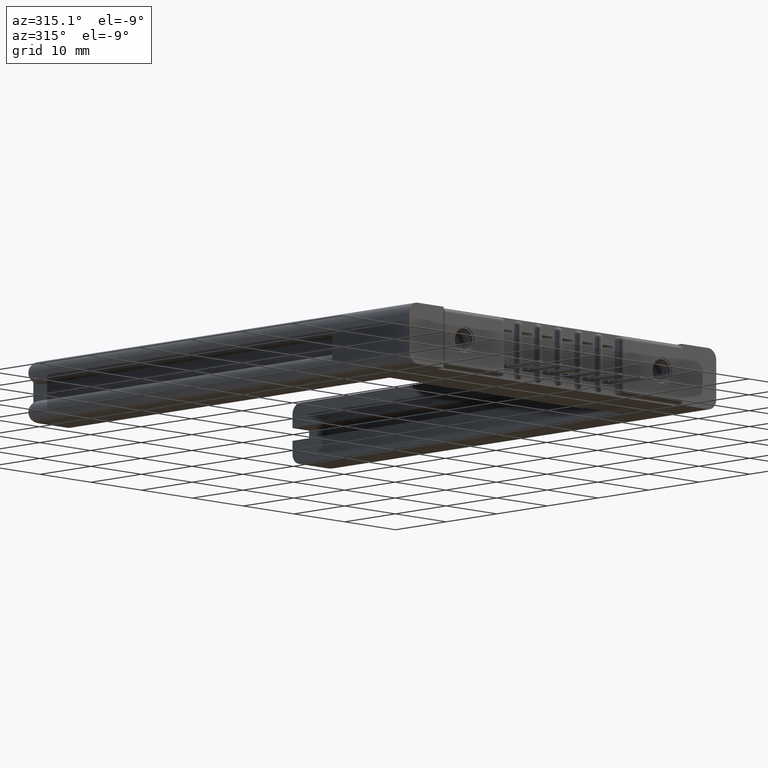
[diagram: clean part render]
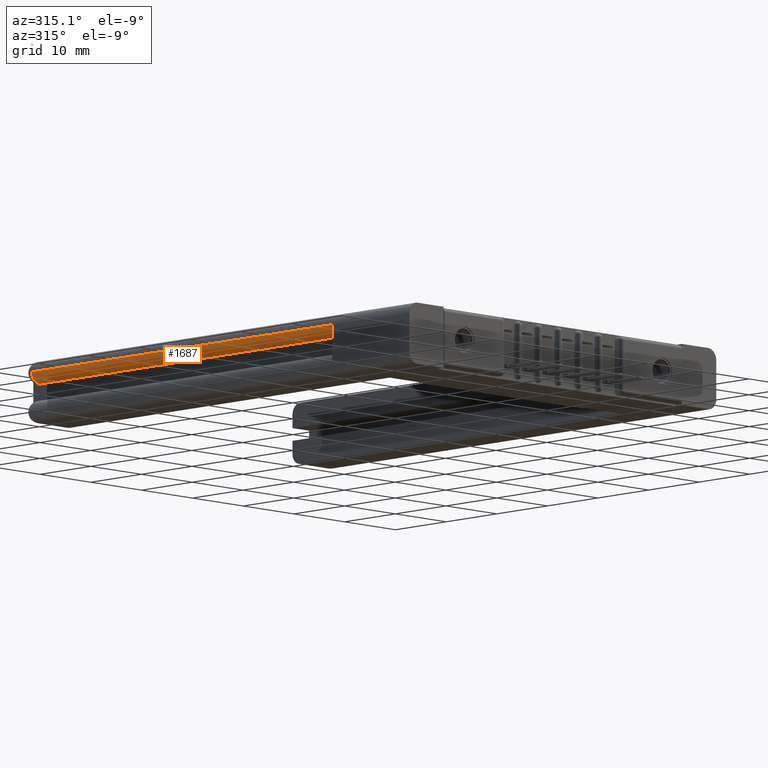
[diagram: same view with one face highlighted and labeled with its STEP entity id]
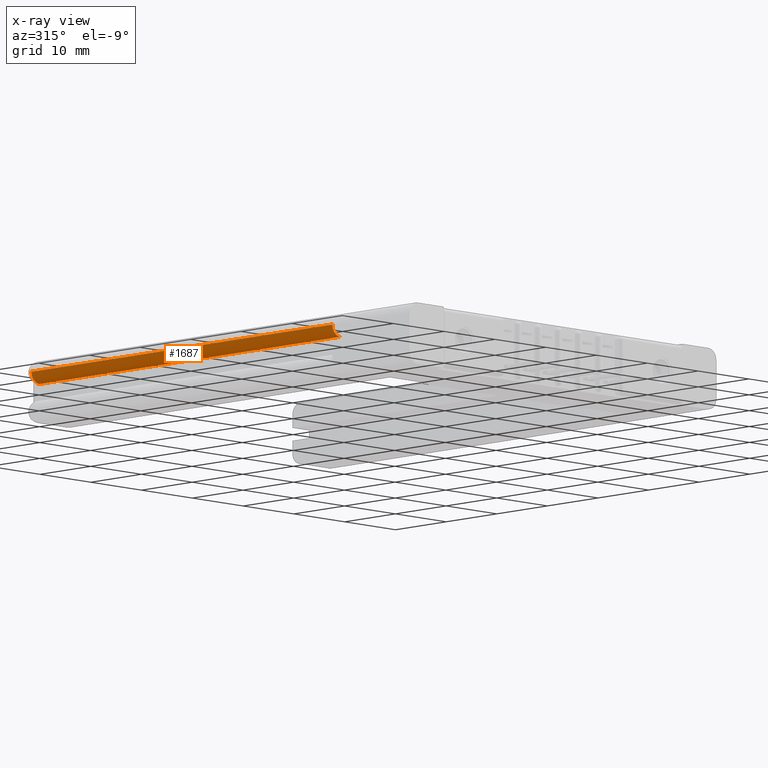
[diagram: x-ray of the same camera — body ghosted, the highlighted face saturated]
A machine part, auxiliary view. The second image highlights one B-rep face of the part: STEP entity #1687.
The next image is the same camera in x-ray: the body ghosted, the highlighted face saturated — about 0% of this face is hidden behind the body in this view.
In plain terms, the highlighted cylindrical surface (edge-blend (fillet) strip) has radius 1.5621 mm, axis along (-0, -1, 0).
Its self-contained STEP definition (entity closure, byte-faithful):
#196 = DIRECTION ( 'NONE',  ( -7.120336040201874200E-016, -1.000000000000000000, 2.334284690065040000E-016 ) ) ;
#373 = VERTEX_POINT ( 'NONE', #8553 ) ;
#503 = LINE ( 'NONE', #9226, #5487 ) ;
#795 = VECTOR ( 'NONE', #6135, 39.37007874015748100 ) ;
#901 = AXIS2_PLACEMENT_3D ( 'NONE', #2911, #196, #2866 ) ;
#1035 = CARTESIAN_POINT ( 'NONE',  ( 0.06149796744608740400, 0.6000000000000002000, -0.1225000000000015000 ) ) ;
#1482 = VERTEX_POINT ( 'NONE', #1958 ) ;
#1687 = ADVANCED_FACE ( 'NONE', ( #5105 ), #10279, .T. ) ;
#1958 = CARTESIAN_POINT ( 'NONE',  ( 2.032419574938677500E-006, 2.940000000000007100, -0.06149998347626495200 ) ) ;
#2248 = CARTESIAN_POINT ( 'NONE',  ( 0.06150000000000370400, 2.940000000000007100, -0.06100000000000110200 ) ) ;
#2866 = DIRECTION ( 'NONE',  ( 0.0000000000000000000, 0.0000000000000000000, -1.000000000000000000 ) ) ;
#2911 = CARTESIAN_POINT ( 'NONE',  ( 0.06149796744608740400, 0.6000000000000002000, -0.06100000000000069300 ) ) ;
#2971 = LINE ( 'NONE', #11797, #795 ) ;
#3234 = ORIENTED_EDGE ( 'NONE', *, *, #10806, .T. ) ;
#3235 = DIRECTION ( 'NONE',  ( 7.120336040201873200E-016, 1.000000000000000000, -2.263142815230032500E-016 ) ) ;
#3626 = AXIS2_PLACEMENT_3D ( 'NONE', #11562, #6894, #7720 ) ;
#4973 = EDGE_CURVE ( 'NONE', #11032, #7390, #5272, .T. ) ;
#5105 = FACE_OUTER_BOUND ( 'NONE', #11660, .T. ) ;
#5272 = CIRCLE ( 'NONE', #901, 0.06150000000000035300 ) ;
#5487 = VECTOR ( 'NONE', #3235, 39.37007874015748100 ) ;
#6135 = DIRECTION ( 'NONE',  ( -7.120336040201873200E-016, -1.000000000000000000, 2.334284690065040000E-016 ) ) ;
#6467 = ORIENTED_EDGE ( 'NONE', *, *, #8716, .F. ) ;
#6894 = DIRECTION ( 'NONE',  ( -7.120336040201873200E-016, -1.000000000000000000, 2.263142815230032500E-016 ) ) ;
#7183 = ORIENTED_EDGE ( 'NONE', *, *, #4973, .F. ) ;
#7390 = VERTEX_POINT ( 'NONE', #1035 ) ;
#7720 = DIRECTION ( 'NONE',  ( 0.0000000000000000000, 0.0000000000000000000, -1.000000000000000000 ) ) ;
#7966 = AXIS2_PLACEMENT_3D ( 'NONE', #2248, #8935, #9792 ) ;
#8553 = CARTESIAN_POINT ( 'NONE',  ( 0.06149796744609068600, 2.940000000000007100, -0.1225000000000015900 ) ) ;
#8716 = EDGE_CURVE ( 'NONE', #1482, #11032, #2971, .T. ) ;
#8801 = EDGE_CURVE ( 'NONE', #7390, #373, #503, .T. ) ;
#8935 = DIRECTION ( 'NONE',  ( -7.120336040201873200E-016, -1.000000000000000000, 2.334284690065040000E-016 ) ) ;
#9004 = ORIENTED_EDGE ( 'NONE', *, *, #8801, .F. ) ;
#9226 = CARTESIAN_POINT ( 'NONE',  ( 0.06149796744608740400, 0.6000000000000002000, -0.1225000000000015700 ) ) ;
#9792 = DIRECTION ( 'NONE',  ( 0.0000000000000000000, 0.0000000000000000000, 1.000000000000000000 ) ) ;
#10279 = CYLINDRICAL_SURFACE ( 'NONE', #3626, 0.06150000000000035300 ) ;
#10320 = CIRCLE ( 'NONE', #7966, 0.06150000000000035300 ) ;
#10806 = EDGE_CURVE ( 'NONE', #1482, #373, #10320, .T. ) ;
#11032 = VERTEX_POINT ( 'NONE', #11244 ) ;
#11244 = CARTESIAN_POINT ( 'NONE',  ( 0.0000000000000000000, 0.5999999999999998700, -0.06150000000000042200 ) ) ;
#11562 = CARTESIAN_POINT ( 'NONE',  ( 0.06150000000000015200, 0.6000000000000002000, -0.06100000000000069300 ) ) ;
#11660 = EDGE_LOOP ( 'NONE', ( #6467, #3234, #9004, #7183 ) ) ;
#11797 = CARTESIAN_POINT ( 'NONE',  ( 3.551402391763542400E-015, 3.000000000000006700, -0.06150000000000131100 ) ) ;